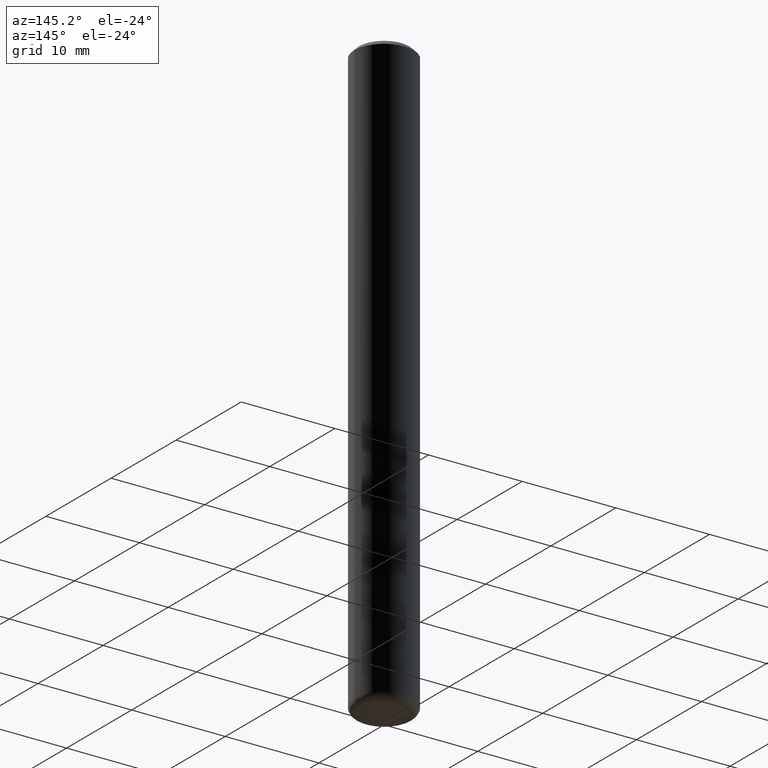
[diagram: clean part render]
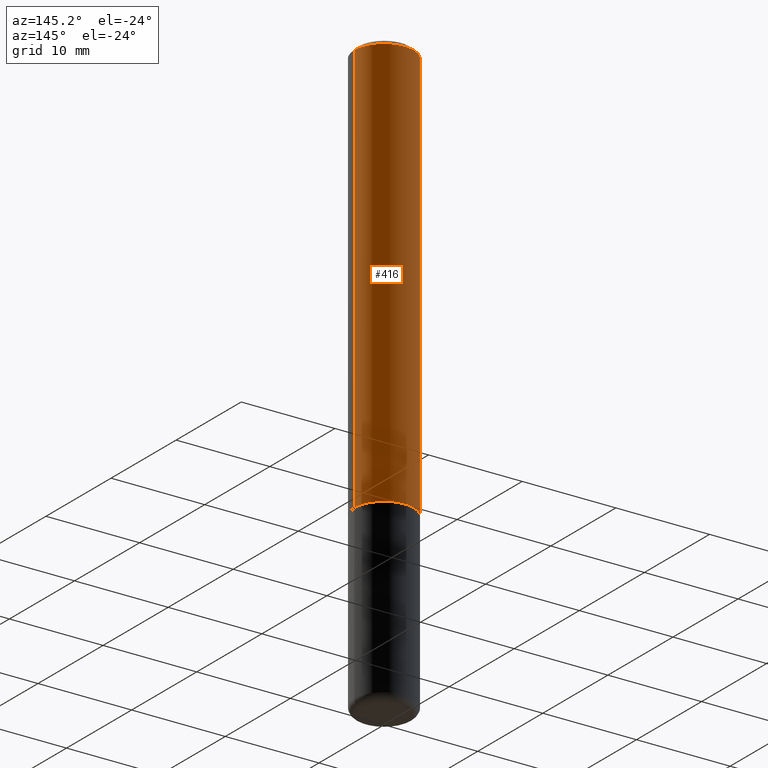
[diagram: same view with one face highlighted and labeled with its STEP entity id]
A machine part, auxiliary view. The second image highlights one B-rep face of the part: STEP entity #416.
In plain terms, the highlighted cylindrical surface (edge-blend (fillet) strip) has radius 3.175 mm, axis along (-0, 0, 1).
Its self-contained STEP definition (entity closure, byte-faithful):
#9 = DIRECTION ( 'NONE',  ( 1.000000000000000000, -6.982962677686267499E-15, 4.876176775795936353E-29 ) ) ;
#29 = LINE ( 'NONE', #354, #200 ) ;
#41 = FACE_OUTER_BOUND ( 'NONE', #243, .T. ) ;
#60 = EDGE_CURVE ( 'NONE', #174, #368, #29, .T. ) ;
#71 = DIRECTION ( 'NONE',  ( 1.000000000000000000, -6.982962677686267499E-15, 0.000000000000000000 ) ) ;
#77 = AXIS2_PLACEMENT_3D ( 'NONE', #294, #233, #71 ) ;
#78 = CYLINDRICAL_SURFACE ( 'NONE', #260, 0.1250000000000000555 ) ;
#103 = VERTEX_POINT ( 'NONE', #188 ) ;
#121 = CARTESIAN_POINT ( 'NONE',  ( -0.1249999999999999584, 8.030407079339200406E-16, -0.02000000000000006287 ) ) ;
#127 = DIRECTION ( 'NONE',  ( -2.445468806185136597E-29, 3.491481338843145583E-15, 1.000000000000000000 ) ) ;
#165 = DIRECTION ( 'NONE',  ( -2.445468806185136597E-29, 3.491481338843145583E-15, 1.000000000000000000 ) ) ;
#169 = CIRCLE ( 'NONE', #77, 0.1250000000000001943 ) ;
#174 = VERTEX_POINT ( 'NONE', #237 ) ;
#179 = VERTEX_POINT ( 'NONE', #390 ) ;
#188 = CARTESIAN_POINT ( 'NONE',  ( 0.1250000000000001943, -6.979471196347446580E-15, -1.749000000000000110 ) ) ;
#189 = DIRECTION ( 'NONE',  ( -2.445468806185136877E-29, 3.491481338843145188E-15, 1.000000000000000000 ) ) ;
#198 = CARTESIAN_POINT ( 'NONE',  ( 0.000000000000000000, 0.000000000000000000, 0.000000000000000000 ) ) ;
#200 = VECTOR ( 'NONE', #189, 39.37007874015748143 ) ;
#203 = ORIENTED_EDGE ( 'NONE', *, *, #314, .T. ) ;
#210 = VECTOR ( 'NONE', #388, 39.37007874015748143 ) ;
#212 = DIRECTION ( 'NONE',  ( 1.000000000000000000, -6.982962677686267499E-15, 0.000000000000000000 ) ) ;
#215 = EDGE_CURVE ( 'NONE', #103, #179, #327, .T. ) ;
#233 = DIRECTION ( 'NONE',  ( -2.445468806185136597E-29, 3.491481338843145583E-15, 1.000000000000000000 ) ) ;
#237 = CARTESIAN_POINT ( 'NONE',  ( -0.1250000000000001943, -2.200036824506633304E-15, -1.749000000000000110 ) ) ;
#243 = EDGE_LOOP ( 'NONE', ( #203, #400, #340, #365 ) ) ;
#254 = EDGE_CURVE ( 'NONE', #179, #368, #403, .T. ) ;
#259 = CARTESIAN_POINT ( 'NONE',  ( 0.1250000000000000555, -8.728703347107838319E-16, 6.095220969744923244E-30 ) ) ;
#260 = AXIS2_PLACEMENT_3D ( 'NONE', #198, #165, #9 ) ;
#294 = CARTESIAN_POINT ( 'NONE',  ( 4.277124942017804562E-29, -6.106600861636661664E-15, -1.749000000000000110 ) ) ;
#314 = EDGE_CURVE ( 'NONE', #103, #174, #169, .T. ) ;
#322 = CARTESIAN_POINT ( 'NONE',  ( 4.890937612370288923E-31, -6.982962677686312563E-17, -0.02000000000000006287 ) ) ;
#327 = LINE ( 'NONE', #259, #210 ) ;
#340 = ORIENTED_EDGE ( 'NONE', *, *, #254, .F. ) ;
#354 = CARTESIAN_POINT ( 'NONE',  ( -0.1250000000000000555, 8.881784197001256268E-16, -6.148668862818635730E-30 ) ) ;
#365 = ORIENTED_EDGE ( 'NONE', *, *, #215, .F. ) ;
#368 = VERTEX_POINT ( 'NONE', #121 ) ;
#382 = AXIS2_PLACEMENT_3D ( 'NONE', #322, #127, #212 ) ;
#388 = DIRECTION ( 'NONE',  ( -2.445468806185136877E-29, 3.491481338843145188E-15, 1.000000000000000000 ) ) ;
#390 = CARTESIAN_POINT ( 'NONE',  ( 0.1249999999999999584, -9.273918764983043491E-16, -0.02000000000000006287 ) ) ;
#400 = ORIENTED_EDGE ( 'NONE', *, *, #60, .T. ) ;
#403 = CIRCLE ( 'NONE', #382, 0.1249999999999999584 ) ;
#416 = ADVANCED_FACE ( 'NONE', ( #41 ), #78, .T. ) ;